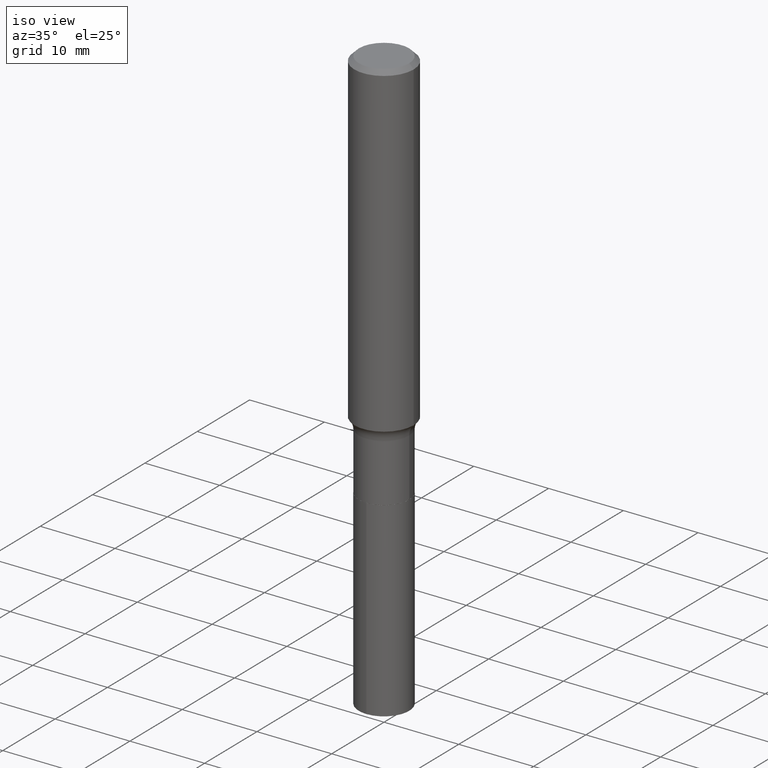
[diagram: clean part render]
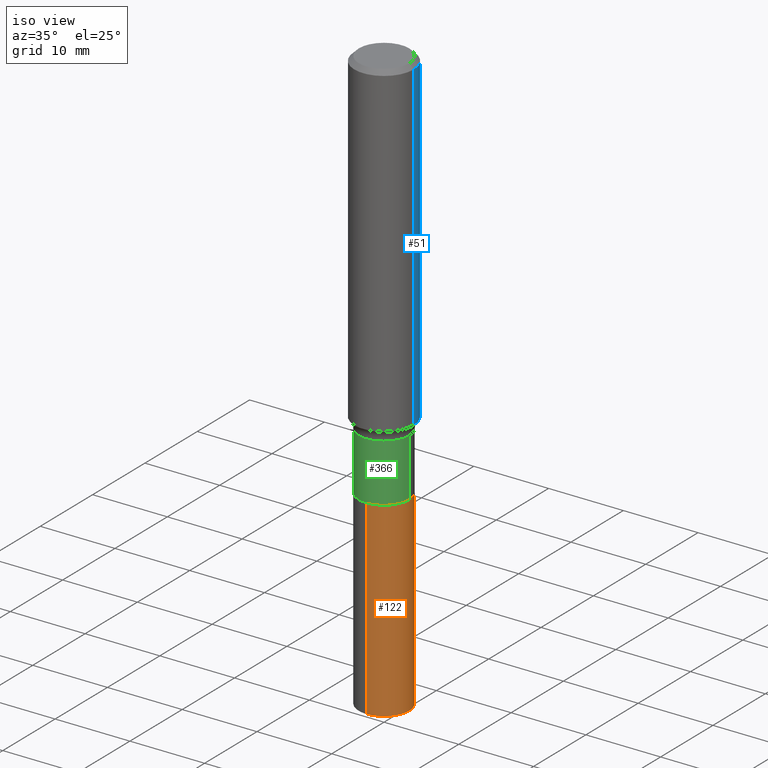
[diagram: same view with three faces highlighted in distinct colors, each labeled with its STEP entity id]
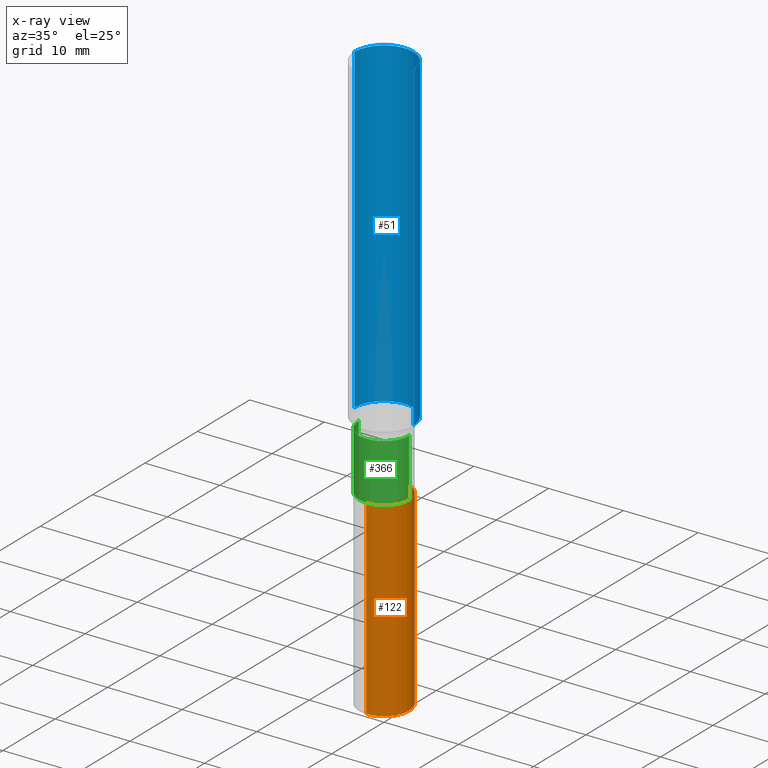
[diagram: x-ray of the same camera — body ghosted, the three highlighted faces saturated]
A machine part, iso view with three faces highlighted in distinct colors.
The next image is the same camera in x-ray (body ghosted, the three faces saturated) — at least one of them is partly hidden behind the body in this view.
Their STEP definitions:

[orange] entity #122 — the highlighted cylindrical surface (edge-blend (fillet) strip) has radius 3.3731 mm, axis along (-0, 0, 1).
#22 = ORIENTED_EDGE ( 'NONE', *, *, #246, .T. ) ;
#28 = CARTESIAN_POINT ( 'NONE',  ( 9.436007530894885901E-16, 0.1327999999999927572, -2.078100000000000502 ) ) ;
#29 = ORIENTED_EDGE ( 'NONE', *, *, #45, .T. ) ;
#38 = DIRECTION ( 'NONE',  ( -6.982962677686265133E-15, -1.000000000000000000, 4.114228906120878260E-15 ) ) ;
#45 = EDGE_CURVE ( 'NONE', #428, #90, #152, .T. ) ;
#61 = CARTESIAN_POINT ( 'NONE',  ( -9.273374435966853408E-16, -0.1328000000000072456, -2.078099999999999614 ) ) ;
#77 = CARTESIAN_POINT ( 'NONE',  ( 9.436007530894881956E-16, 0.1327999999999892322, -3.083128320836872494 ) ) ;
#78 = DIRECTION ( 'NONE',  ( -2.444881606690316001E-29, 3.492322241941048570E-15, 1.000000000000000000 ) ) ;
#84 = CARTESIAN_POINT ( 'NONE',  ( 5.081928726133333135E-29, -7.255647370249941067E-15, -2.078100000000000058 ) ) ;
#90 = VERTEX_POINT ( 'NONE', #77 ) ;
#107 = ORIENTED_EDGE ( 'NONE', *, *, #371, .F. ) ;
#113 = CARTESIAN_POINT ( 'NONE',  ( 9.436007530894637409E-16, 0.1327999999999927294, -2.078100000000000502 ) ) ;
#122 = ADVANCED_FACE ( 'NONE', ( #239 ), #158, .T. ) ;
#125 = VECTOR ( 'NONE', #78, 39.37007874015748143 ) ;
#145 = DIRECTION ( 'NONE',  ( -2.444881606690316001E-29, 3.492322241941048570E-15, 1.000000000000000000 ) ) ;
#152 = CIRCLE ( 'NONE', #218, 0.1328000000000000014 ) ;
#158 = CYLINDRICAL_SURFACE ( 'NONE', #464, 0.1328000000000000014 ) ;
#206 = CARTESIAN_POINT ( 'NONE',  ( -9.273374435966853408E-16, -0.1328000000000072456, -2.078099999999999614 ) ) ;
#210 = VECTOR ( 'NONE', #145, 39.37007874015748143 ) ;
#218 = AXIS2_PLACEMENT_3D ( 'NONE', #338, #299, #444 ) ;
#227 = ORIENTED_EDGE ( 'NONE', *, *, #412, .F. ) ;
#239 = FACE_OUTER_BOUND ( 'NONE', #243, .T. ) ;
#241 = CARTESIAN_POINT ( 'NONE',  ( 5.081928726133333135E-29, -7.255647370249941067E-15, -2.078100000000000058 ) ) ;
#242 = CIRCLE ( 'NONE', #356, 0.1328000000000000014 ) ;
#243 = EDGE_LOOP ( 'NONE', ( #29, #22, #107, #227 ) ) ;
#246 = EDGE_CURVE ( 'NONE', #90, #437, #314, .T. ) ;
#256 = LINE ( 'NONE', #61, #210 ) ;
#274 = DIRECTION ( 'NONE',  ( -2.444881606690316001E-29, 3.492322241941048176E-15, 1.000000000000000000 ) ) ;
#290 = VERTEX_POINT ( 'NONE', #206 ) ;
#298 = CARTESIAN_POINT ( 'NONE',  ( -9.273374435966606889E-16, -0.1328000000000107705, -3.083128320836871161 ) ) ;
#299 = DIRECTION ( 'NONE',  ( -2.444881606690316001E-29, 3.492322241941048176E-15, 1.000000000000000000 ) ) ;
#314 = LINE ( 'NONE', #113, #125 ) ;
#338 = CARTESIAN_POINT ( 'NONE',  ( 7.539103981950252717E-29, -1.076553012888921088E-14, -3.083128320836871605 ) ) ;
#356 = AXIS2_PLACEMENT_3D ( 'NONE', #241, #431, #358 ) ;
#358 = DIRECTION ( 'NONE',  ( -6.982962677686265133E-15, -1.000000000000000000, 4.114228906120878260E-15 ) ) ;
#371 = EDGE_CURVE ( 'NONE', #290, #437, #242, .T. ) ;
#412 = EDGE_CURVE ( 'NONE', #428, #290, #256, .T. ) ;
#428 = VERTEX_POINT ( 'NONE', #298 ) ;
#431 = DIRECTION ( 'NONE',  ( -2.444881606690316001E-29, 3.492322241941048176E-15, 1.000000000000000000 ) ) ;
#437 = VERTEX_POINT ( 'NONE', #28 ) ;
#444 = DIRECTION ( 'NONE',  ( -6.982962677686265133E-15, -1.000000000000000000, 4.114228906120878260E-15 ) ) ;
#464 = AXIS2_PLACEMENT_3D ( 'NONE', #84, #274, #38 ) ;

[blue] entity #51 — the highlighted cylindrical surface (edge-blend (fillet) strip) has radius 3.9688 mm, axis along (-0, 0, 1).
#24 = ORIENTED_EDGE ( 'NONE', *, *, #301, .T. ) ;
#46 = CARTESIAN_POINT ( 'NONE',  ( -0.1562500000000001110, 1.110223024625157329E-15, -7.685836078523295364E-30 ) ) ;
#51 = ADVANCED_FACE ( 'NONE', ( #264 ), #440, .T. ) ;
#54 = CARTESIAN_POINT ( 'NONE',  ( -0.1562500000000000000, -1.928038535383583157E-15, -0.02343750000000013878 ) ) ;
#73 = EDGE_CURVE ( 'NONE', #259, #268, #423, .T. ) ;
#95 = AXIS2_PLACEMENT_3D ( 'NONE', #441, #376, #98 ) ;
#98 = DIRECTION ( 'NONE',  ( 1.000000000000000000, -6.982962677686265922E-15, 0.000000000000000000 ) ) ;
#134 = VECTOR ( 'NONE', #367, 39.37007874015748143 ) ;
#141 = CARTESIAN_POINT ( 'NONE',  ( 0.1562500000000002220, -7.085779444526826081E-15, -1.716947892416519350 ) ) ;
#179 = EDGE_LOOP ( 'NONE', ( #380, #24, #359, #474 ) ) ;
#186 = CIRCLE ( 'NONE', #95, 0.1562500000000002220 ) ;
#216 = CARTESIAN_POINT ( 'NONE',  ( 0.1562500000000001110, -1.091087918388479962E-15, 7.619026212181155982E-30 ) ) ;
#236 = DIRECTION ( 'NONE',  ( -2.445468806185136597E-29, 3.491481338843145583E-15, 1.000000000000000000 ) ) ;
#244 = LINE ( 'NONE', #46, #362 ) ;
#257 = DIRECTION ( 'NONE',  ( -2.445468806185136597E-29, 3.491481338843145583E-15, 1.000000000000000000 ) ) ;
#259 = VERTEX_POINT ( 'NONE', #329 ) ;
#264 = FACE_OUTER_BOUND ( 'NONE', #179, .T. ) ;
#268 = VERTEX_POINT ( 'NONE', #54 ) ;
#297 = VERTEX_POINT ( 'NONE', #396 ) ;
#301 = EDGE_CURVE ( 'NONE', #297, #268, #244, .T. ) ;
#319 = AXIS2_PLACEMENT_3D ( 'NONE', #426, #236, #355 ) ;
#329 = CARTESIAN_POINT ( 'NONE',  ( 0.1562500000000000000, -1.172919512267615999E-15, -0.02343750000000013878 ) ) ;
#348 = AXIS2_PLACEMENT_3D ( 'NONE', #411, #257, #375 ) ;
#355 = DIRECTION ( 'NONE',  ( 1.000000000000000000, -6.982962677686266711E-15, 0.000000000000000000 ) ) ;
#357 = DIRECTION ( 'NONE',  ( -2.445468806185136877E-29, 3.491481338843145188E-15, 1.000000000000000000 ) ) ;
#359 = ORIENTED_EDGE ( 'NONE', *, *, #73, .F. ) ;
#362 = VECTOR ( 'NONE', #357, 39.37007874015748143 ) ;
#367 = DIRECTION ( 'NONE',  ( -2.445468806185136877E-29, 3.491481338843145188E-15, 1.000000000000000000 ) ) ;
#375 = DIRECTION ( 'NONE',  ( 1.000000000000000000, -6.982962677686266711E-15, 4.876176775795936353E-29 ) ) ;
#376 = DIRECTION ( 'NONE',  ( -2.445468806185136597E-29, 3.491481338843145583E-15, 1.000000000000000000 ) ) ;
#380 = ORIENTED_EDGE ( 'NONE', *, *, #475, .T. ) ;
#396 = CARTESIAN_POINT ( 'NONE',  ( -0.1562500000000002220, -4.884468501513188001E-15, -1.716947892416519350 ) ) ;
#411 = CARTESIAN_POINT ( 'NONE',  ( 0.000000000000000000, 0.000000000000000000, 0.000000000000000000 ) ) ;
#415 = VERTEX_POINT ( 'NONE', #141 ) ;
#421 = EDGE_CURVE ( 'NONE', #415, #259, #448, .T. ) ;
#423 = CIRCLE ( 'NONE', #319, 0.1562500000000000000 ) ;
#426 = CARTESIAN_POINT ( 'NONE',  ( 5.731567514496448055E-31, -8.183159387913671455E-17, -0.02343750000000013878 ) ) ;
#440 = CYLINDRICAL_SURFACE ( 'NONE', #348, 0.1562500000000001110 ) ;
#441 = CARTESIAN_POINT ( 'NONE',  ( 4.198742512749911832E-29, -5.994691526138346119E-15, -1.716947892416519350 ) ) ;
#448 = LINE ( 'NONE', #216, #134 ) ;
#474 = ORIENTED_EDGE ( 'NONE', *, *, #421, .F. ) ;
#475 = EDGE_CURVE ( 'NONE', #415, #297, #186, .T. ) ;

[green] entity #366 — the highlighted cylindrical surface (edge-blend (fillet) strip) has radius 3.3731 mm, axis along (-0, 0, 1).
#1 = DIRECTION ( 'NONE',  ( -2.445468806185136877E-29, 3.491481338843145188E-15, 1.000000000000000000 ) ) ;
#53 = ORIENTED_EDGE ( 'NONE', *, *, #288, .T. ) ;
#58 = CARTESIAN_POINT ( 'NONE',  ( -0.1327999999999999736, 9.436007530894128594E-16, -6.532345799858513932E-30 ) ) ;
#86 = VERTEX_POINT ( 'NONE', #117 ) ;
#87 = AXIS2_PLACEMENT_3D ( 'NONE', #407, #180, #488 ) ;
#117 = CARTESIAN_POINT ( 'NONE',  ( 0.1327999999999999736, -7.116686412963979916E-15, -1.772700000000000164 ) ) ;
#171 = EDGE_CURVE ( 'NONE', #434, #86, #200, .T. ) ;
#174 = ORIENTED_EDGE ( 'NONE', *, *, #409, .F. ) ;
#180 = DIRECTION ( 'NONE',  ( -2.445468806185136597E-29, 3.491481338843145583E-15, 1.000000000000000000 ) ) ;
#200 = LINE ( 'NONE', #418, #321 ) ;
#201 = CARTESIAN_POINT ( 'NONE',  ( -0.1327999999999999736, -5.778024546384469755E-15, -1.772700000000000164 ) ) ;
#209 = AXIS2_PLACEMENT_3D ( 'NONE', #478, #476, #331 ) ;
#219 = CIRCLE ( 'NONE', #209, 0.1328000000000000014 ) ;
#221 = LINE ( 'NONE', #58, #394 ) ;
#222 = ORIENTED_EDGE ( 'NONE', *, *, #390, .F. ) ;
#281 = FACE_OUTER_BOUND ( 'NONE', #365, .T. ) ;
#285 = CARTESIAN_POINT ( 'NONE',  ( 0.000000000000000000, 0.000000000000000000, 0.000000000000000000 ) ) ;
#288 = EDGE_CURVE ( 'NONE', #377, #434, #219, .T. ) ;
#306 = ORIENTED_EDGE ( 'NONE', *, *, #171, .T. ) ;
#309 = CIRCLE ( 'NONE', #87, 0.1327999999999999736 ) ;
#321 = VECTOR ( 'NONE', #422, 39.37007874015748143 ) ;
#331 = DIRECTION ( 'NONE',  ( 1.000000000000000000, -6.982962677686263555E-15, 0.000000000000000000 ) ) ;
#360 = DIRECTION ( 'NONE',  ( 1.000000000000000000, -6.982962677686266711E-15, 4.876176775795936353E-29 ) ) ;
#363 = VERTEX_POINT ( 'NONE', #201 ) ;
#365 = EDGE_LOOP ( 'NONE', ( #174, #53, #306, #222 ) ) ;
#366 = ADVANCED_FACE ( 'NONE', ( #281 ), #469, .T. ) ;
#370 = AXIS2_PLACEMENT_3D ( 'NONE', #285, #432, #360 ) ;
#377 = VERTEX_POINT ( 'NONE', #404 ) ;
#390 = EDGE_CURVE ( 'NONE', #363, #86, #309, .T. ) ;
#394 = VECTOR ( 'NONE', #1, 39.37007874015748143 ) ;
#404 = CARTESIAN_POINT ( 'NONE',  ( -0.1328000000000000014, -5.778024546384469755E-15, -2.077600000000000335 ) ) ;
#407 = CARTESIAN_POINT ( 'NONE',  ( 4.335082552724392030E-29, -6.189348969367244877E-15, -1.772700000000000164 ) ) ;
#409 = EDGE_CURVE ( 'NONE', #377, #363, #221, .T. ) ;
#418 = CARTESIAN_POINT ( 'NONE',  ( 0.1327999999999999736, -9.273374435967360251E-16, 6.475562758257002307E-30 ) ) ;
#422 = DIRECTION ( 'NONE',  ( -2.445468806185136877E-29, 3.491481338843145188E-15, 1.000000000000000000 ) ) ;
#432 = DIRECTION ( 'NONE',  ( -2.445468806185136597E-29, 3.491481338843145583E-15, 1.000000000000000000 ) ) ;
#434 = VERTEX_POINT ( 'NONE', #482 ) ;
#469 = CYLINDRICAL_SURFACE ( 'NONE', #370, 0.1327999999999999736 ) ;
#476 = DIRECTION ( 'NONE',  ( -2.445468806185136597E-29, 3.491481338843145583E-15, 1.000000000000000000 ) ) ;
#478 = CARTESIAN_POINT ( 'NONE',  ( 5.080705991730240333E-29, -7.253901629580520352E-15, -2.077600000000000335 ) ) ;
#482 = CARTESIAN_POINT ( 'NONE',  ( 0.1328000000000000014, -8.181239073177256180E-15, -2.077600000000000335 ) ) ;
#488 = DIRECTION ( 'NONE',  ( 1.000000000000000000, -6.982962677686265133E-15, 0.000000000000000000 ) ) ;